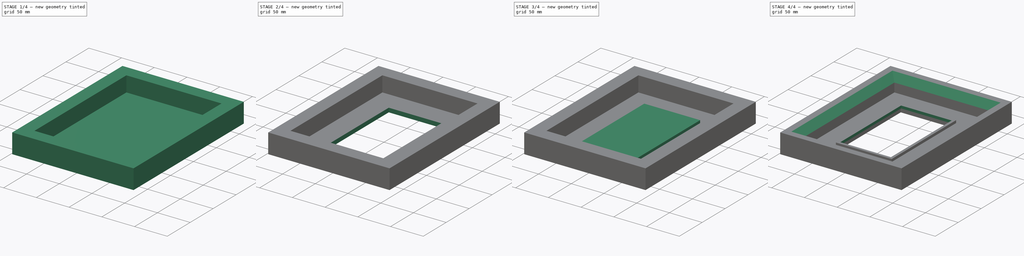
[diagram: build sequence overview — one tinted view per stage of 4, left to right]
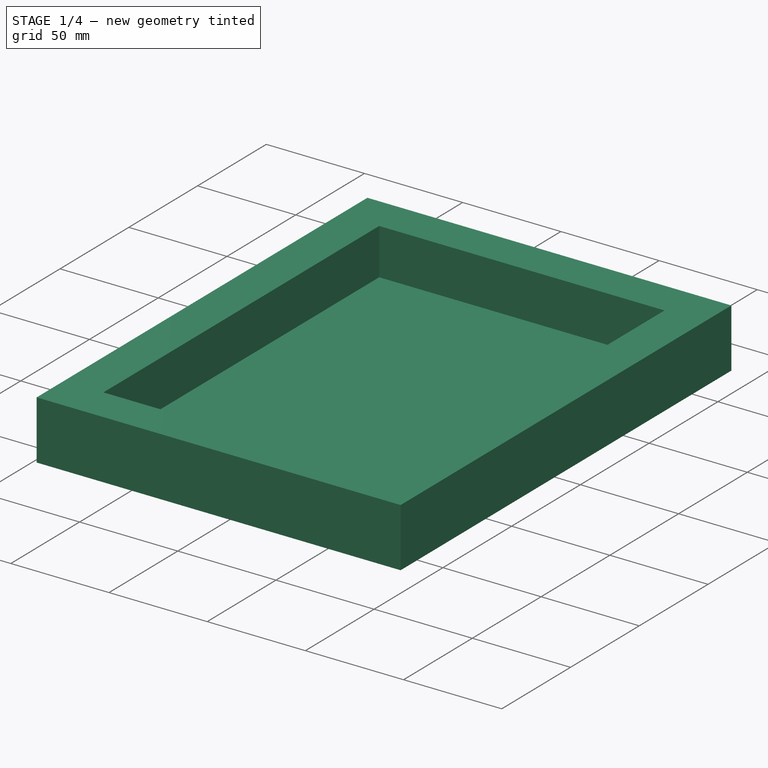
[diagram: stage 1 of 4 — iso view after this stage's code; geometry added in this stage tinted green]
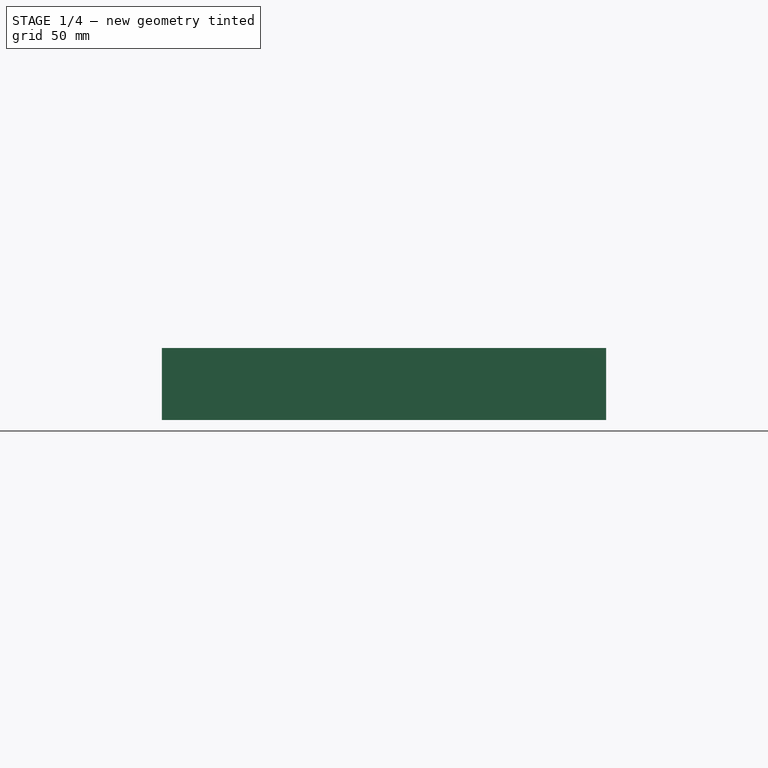
[diagram: stage 1 of 4 — front view after this stage's code; geometry added in this stage tinted green]
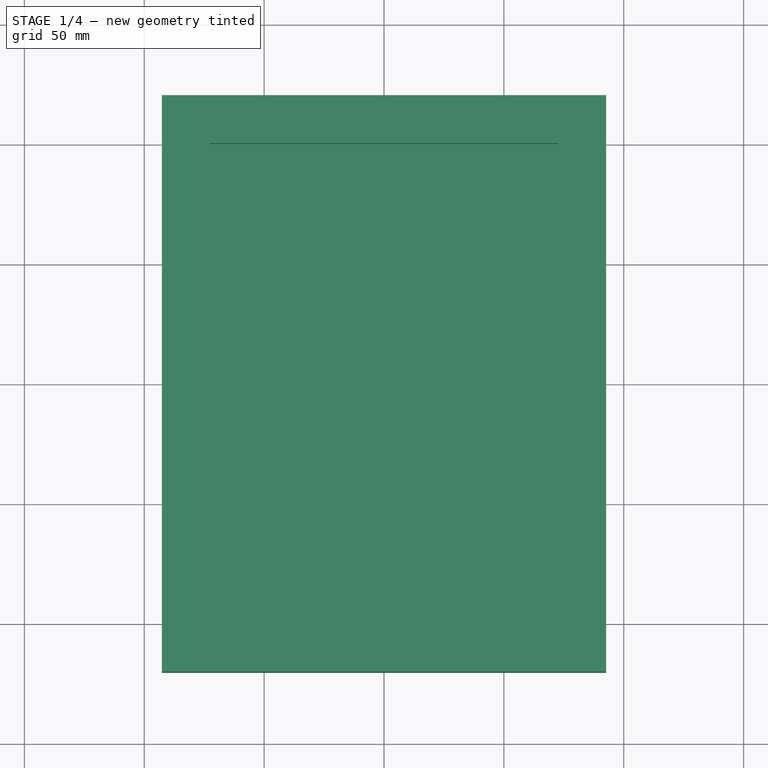
[diagram: stage 1 of 4 — top view after this stage's code; geometry added in this stage tinted green]
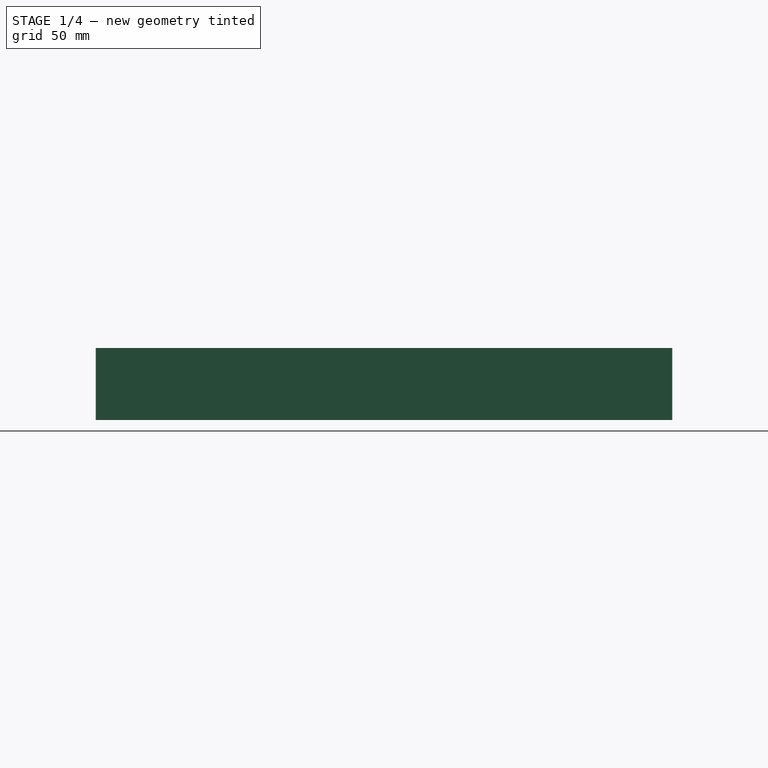
[diagram: stage 1 of 4 — right view after this stage's code; geometry added in this stage tinted green]
FCSTD DOCUMENT  (FreeCAD 0.21R33694 (Git))
Label: Outer_frame
License: All rights reserved
LicenseURL: http://en.wikipedia.org/wiki/All_rights_reserved
objects: Sketcher::SketchObject×9, PartDesign::Pocket×7, PartDesign::Pad×2, Spreadsheet::Sheet×1, PartDesign::Chamfer×1, PartDesign::Body×1, App::Part×1
note: 30 computed .brp shape members not serialized (recipe doc carries the construction recipe); baked Part::Feature solids carry a one-line shape summary decoded from their .brp

FEATURE [Sketcher::SketchObject] Sketch
  FullyConstrained = true
  MapMode = 5
  Support = -> [XY_Plane001]
  expr: Constraints[10] = <<p>>.outer_width
  expr: Constraints[11] = <<p>>.outer_length
  sketch-geometry (5):
    g0: LineSegment StartX=-92.66 StartY=120.25 StartZ=0 EndX=-92.66 EndY=-120.25 EndZ=0
    g1: LineSegment StartX=-92.66 StartY=-120.25 StartZ=0 EndX=92.66 EndY=-120.25 EndZ=0
    g2: LineSegment StartX=92.66 StartY=-120.25 StartZ=0 EndX=92.66 EndY=120.25 EndZ=0
    g3: LineSegment StartX=92.66 StartY=120.25 StartZ=0 EndX=-92.66 EndY=120.25 EndZ=0
    g4: GeomPoint X=0 Y=0 Z=0
  constraints (12):
    c: Coincident(g0,g1)
    c: Coincident(g1,g2)
    c: Coincident(g2,g3)
    c: Coincident(g3,g0)
    c: Horizontal(g1)
    c: Horizontal(g3)
    c: Vertical(g0)
    c: Vertical(g2)
    c: Symmetric(g1,g0,g4)
    c: Coincident(g4,g-1)
    c: DistanceX(g3,g3) = 185.32
    c: DistanceY(g2,g2) = 240.5
FEATURE [PartDesign::Pad] Pad
  Direction = (0,0,1)
  Length = 30
  Length2 = 10
  Profile = -> Sketch
  ReferenceAxis = -> Sketch [N_Axis]
  Type = 0
FEATURE [Spreadsheet::Sheet] Spreadsheet  label="p"
  cells = A1='outer_width; B1(outer_width)==B4 + 75; A2='outer_length; B2(outer_length)==B5 + 75; A4='card_holder_width; B4(card_holder_width)=110.32; A5='card_holder_length; B5(card_holder_length)=165.5; A6='card_holder_thickness; B6(card_holder_thickness)=6.4; A8='big_border_width; A10='card_frame_width_inside; B10(card_frame_width_inside)=80.32; A11='card_frame_height_inside; B11(card_frame_height_inside)=135.5; A12='card_frame_thickness_inside; B12(card_frame_thickness_inside)=6.4
FEATURE [Sketcher::SketchObject] Sketch003
  AttachmentOffset = pos=(0,0,30) rot=(0,0,1;0rad)
  FullyConstrained = true
  MapMode = 5
  Placement = pos=(0,0,30) rot=(0,0,1;0rad)
  Support = -> [XY_Plane001]
  expr: Constraints[10] = <<p>>.card_holder_width + 35
  expr: Constraints[11] = <<p>>.card_holder_length + 35
  sketch-geometry (5):
    g0: LineSegment StartX=-72.66 StartY=100.25 StartZ=0 EndX=-72.66 EndY=-100.25 EndZ=0
    g1: LineSegment StartX=-72.66 StartY=-100.25 StartZ=0 EndX=72.66 EndY=-100.25 EndZ=0
    g2: LineSegment StartX=72.66 StartY=-100.25 StartZ=0 EndX=72.66 EndY=100.25 EndZ=0
    g3: LineSegment StartX=72.66 StartY=100.25 StartZ=0 EndX=-72.66 EndY=100.25 EndZ=0
    g4: GeomPoint X=0 Y=0 Z=0
  constraints (12):
    c: Coincident(g0,g1)
    c: Coincident(g1,g2)
    c: Coincident(g2,g3)
    c: Coincident(g3,g0)
    c: Horizontal(g1)
    c: Horizontal(g3)
    c: Vertical(g0)
    c: Vertical(g2)
    c: Symmetric(g1,g0,g4)
    c: Coincident(g4,g-1)
    c: DistanceX(g3,g3) = 145.32
    c: DistanceY(g2,g2) = 200.5
FEATURE [PartDesign::Pocket] Pocket
  BaseFeature = -> Pad
  Direction = (0,0,-1)
  Length = 23.6
  Length2 = 5
  Profile = -> Sketch003
  ReferenceAxis = -> Sketch003 [N_Axis]
  Type = 0
  expr: Length = 30 - <<p>>.card_holder_thickness
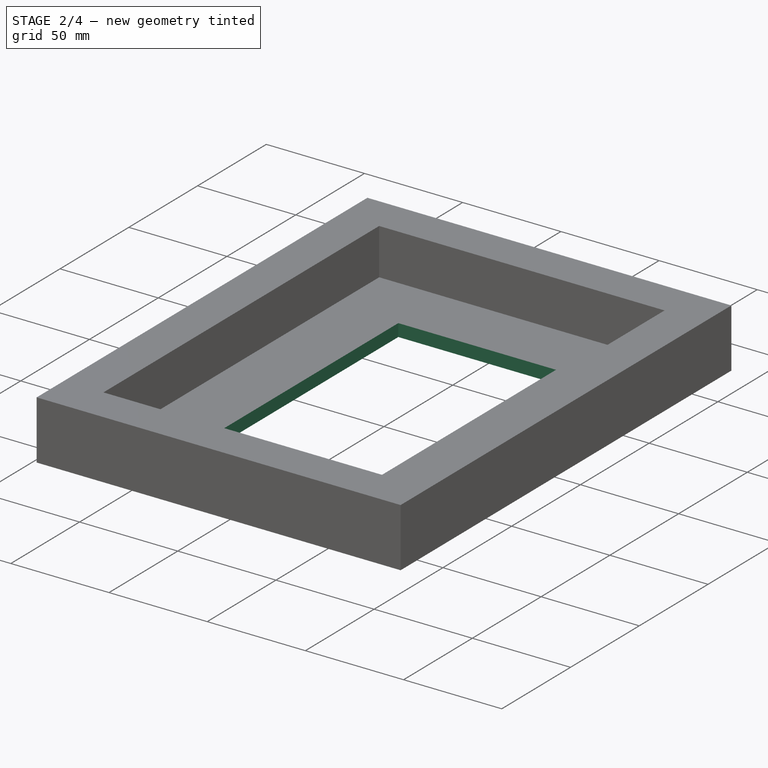
[diagram: stage 2 of 4 — iso view after this stage's code; geometry added in this stage tinted green]
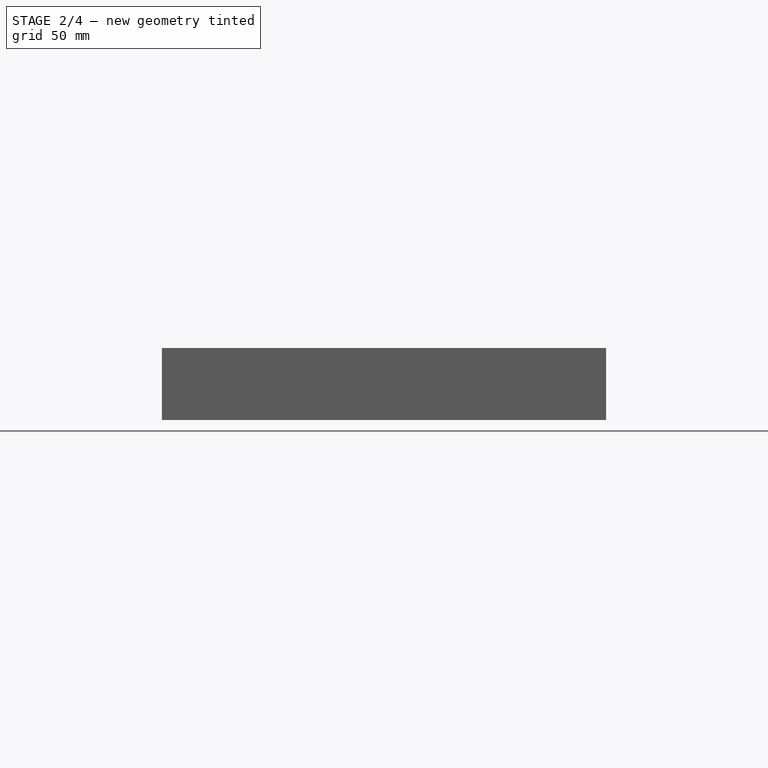
[diagram: stage 2 of 4 — front view after this stage's code; geometry added in this stage tinted green]
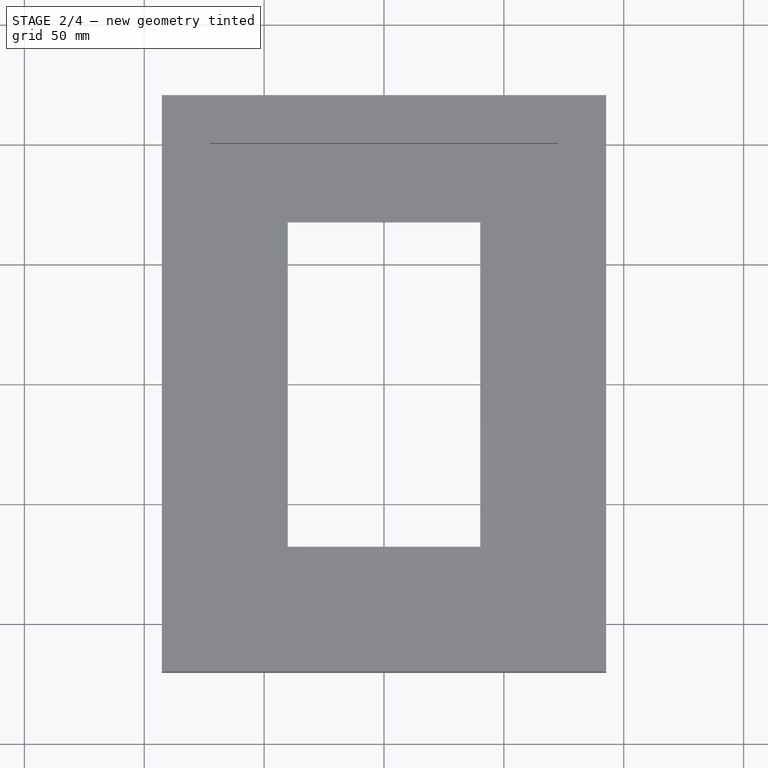
[diagram: stage 2 of 4 — top view after this stage's code; geometry added in this stage tinted green]
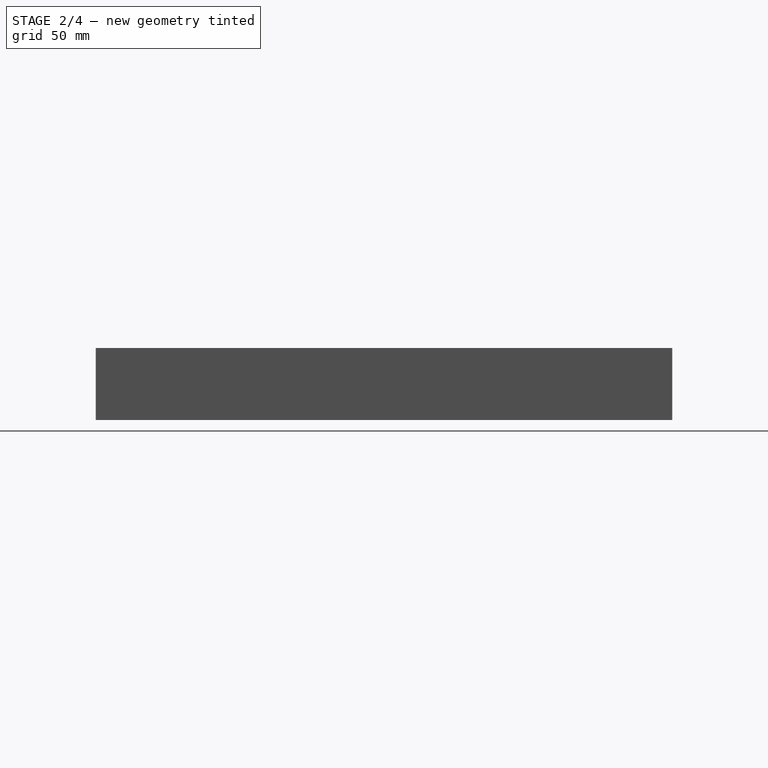
[diagram: stage 2 of 4 — right view after this stage's code; geometry added in this stage tinted green]
FEATURE [Sketcher::SketchObject] Sketch004
  AttachmentOffset = pos=(0,0,6.4) rot=(0,0,1;0rad)
  FullyConstrained = true
  MapMode = 5
  Placement = pos=(0,0,6.4) rot=(0,0,1;0rad)
  Support = -> [XY_Plane001]
  expr: .AttachmentOffset.Base.z = <<p>>.card_holder_thickness
  expr: Constraints[10] = <<p>>.card_frame_width_inside
  expr: Constraints[11] = <<p>>.card_frame_height_inside
  sketch-geometry (5):
    g0: LineSegment StartX=-40.16 StartY=67.75 StartZ=0 EndX=-40.16 EndY=-67.75 EndZ=0
    g1: LineSegment StartX=-40.16 StartY=-67.75 StartZ=0 EndX=40.16 EndY=-67.75 EndZ=0
    g2: LineSegment StartX=40.16 StartY=-67.75 StartZ=0 EndX=40.16 EndY=67.75 EndZ=0
    g3: LineSegment StartX=40.16 StartY=67.75 StartZ=0 EndX=-40.16 EndY=67.75 EndZ=0
    g4: GeomPoint X=0 Y=0 Z=0
  constraints (12):
    c: Coincident(g0,g1)
    c: Coincident(g1,g2)
    c: Coincident(g2,g3)
    c: Coincident(g3,g0)
    c: Horizontal(g1)
    c: Horizontal(g3)
    c: Vertical(g0)
    c: Vertical(g2)
    c: Symmetric(g1,g0,g4)
    c: Coincident(g4,g-1)
    c: DistanceX(g3,g3) = 80.32
    c: DistanceY(g2,g2) = 135.5
FEATURE [PartDesign::Pocket] Pocket001
  BaseFeature = -> Pocket
  Direction = (0,0,-1)
  Length = 6.4
  Length2 = 5
  Profile = -> Sketch004
  ReferenceAxis = -> Sketch004 [N_Axis]
  Type = 0
  expr: Length = <<p>>.card_holder_thickness
FEATURE [Sketcher::SketchObject] Sketch005
  FullyConstrained = true
  MapMode = 5
  Support = -> [XY_Plane001]
  sketch-geometry (4):
    g0: ArcOfCircle CenterX=-82.985 CenterY=0 CenterZ=0 NormalX=0 NormalY=0 NormalZ=1 AngleXU=0 Radius=2.985 StartAngle=3.14159 EndAngle=6.28319
    g1: LineSegment StartX=-80 StartY=-7e-16 StartZ=0 EndX=-80 EndY=18.026 EndZ=0
    g2: LineSegment StartX=-85.97 StartY=18.026 StartZ=0 EndX=-85.97 EndY=0 EndZ=0
    g3: ArcOfCircle CenterX=-82.985 CenterY=22.29 CenterZ=0 NormalX=0 NormalY=0 NormalZ=1 AngleXU=0 Radius=5.205 StartAngle=5.32315 EndAngle=10.3848
  constraints (12):
    c: Tangent(g0,g1) = -1.5708
    c: Tangent(g2,g0) = -1.5708
    c: PointOnObject(g0,g-1)
    c: Vertical(g1)
    c: Diameter(g3) = 10.41
    c: Coincident(g3,g2)
    c: Coincident(g3,g1)
    c: Horizontal(g2,g1)
    c: Vertical(g2)
    c: DistanceX(g0,g-1) = 80
    c: DistanceY(g0,g3) = 22.29
    c: Diameter(g0) = 5.97
FEATURE [PartDesign::Pocket] Pocket002
  BaseFeature = -> Pocket001
  Direction = (0,0,-1)
  Length = 3
  Length2 = 5
  Profile = -> Sketch005
  ReferenceAxis = -> Sketch005 [N_Axis]
  Reversed = true
  Type = 0
FEATURE [Sketcher::SketchObject] Sketch006
  FullyConstrained = true
  MapMode = 5
  Placement = pos=(0,0,0) rot=(1,0,0;1.5708rad)
  Support = -> [XZ_Plane001]
  sketch-geometry (4):
    g0: LineSegment StartX=-90 StartY=5.98 StartZ=0 EndX=-76 EndY=5.98 EndZ=0
    g1: LineSegment StartX=-76 StartY=5.98 StartZ=0 EndX=-76 EndY=2.98 EndZ=0
    g2: LineSegment StartX=-76 StartY=2.98 StartZ=0 EndX=-90 EndY=2.98 EndZ=0
    g3: LineSegment StartX=-90 StartY=2.98 StartZ=0 EndX=-90 EndY=5.98 EndZ=0
  constraints (12):
    c: Coincident(g0,g1)
    c: Coincident(g1,g2)
    c: Coincident(g2,g3)
    c: Coincident(g3,g0)
    c: Horizontal(g0)
    c: Horizontal(g2)
    c: Vertical(g1)
    c: Vertical(g3)
    c: DistanceX(g1,g-1) = 76
    c: DistanceX(g2,g-1) = 90
    c: DistanceY(g3,g3) = 3
    c: DistanceY(g-1,g1) = 2.98
FEATURE [PartDesign::Pocket] Pocket003
  BaseFeature = -> Pocket002
  Direction = (0,1,2e-16)
  Length = 60
  Length2 = 5
  Midplane = true
  Profile = -> Sketch006
  ReferenceAxis = -> Sketch006 [N_Axis]
  Type = 0
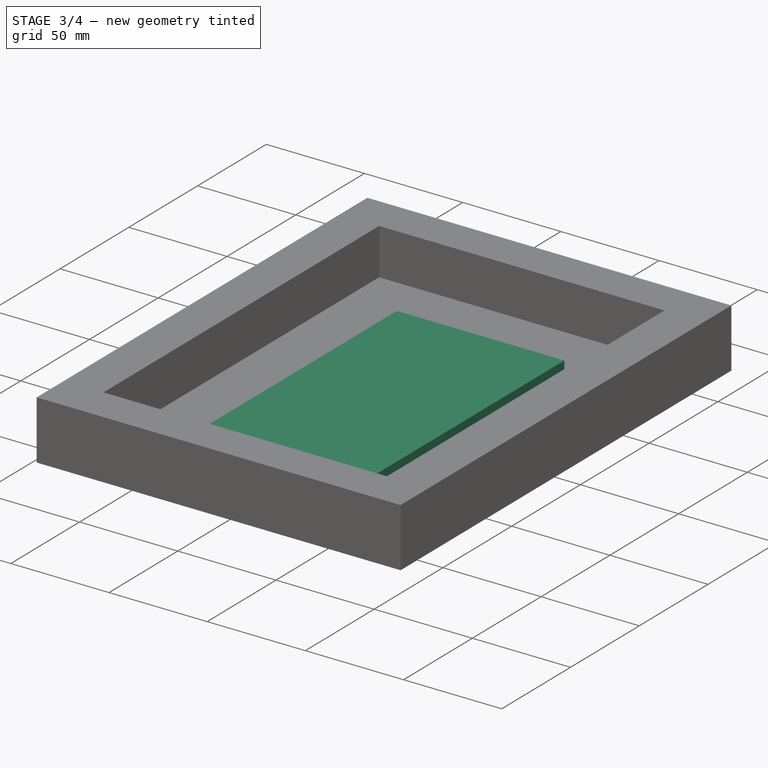
[diagram: stage 3 of 4 — iso view after this stage's code; geometry added in this stage tinted green]
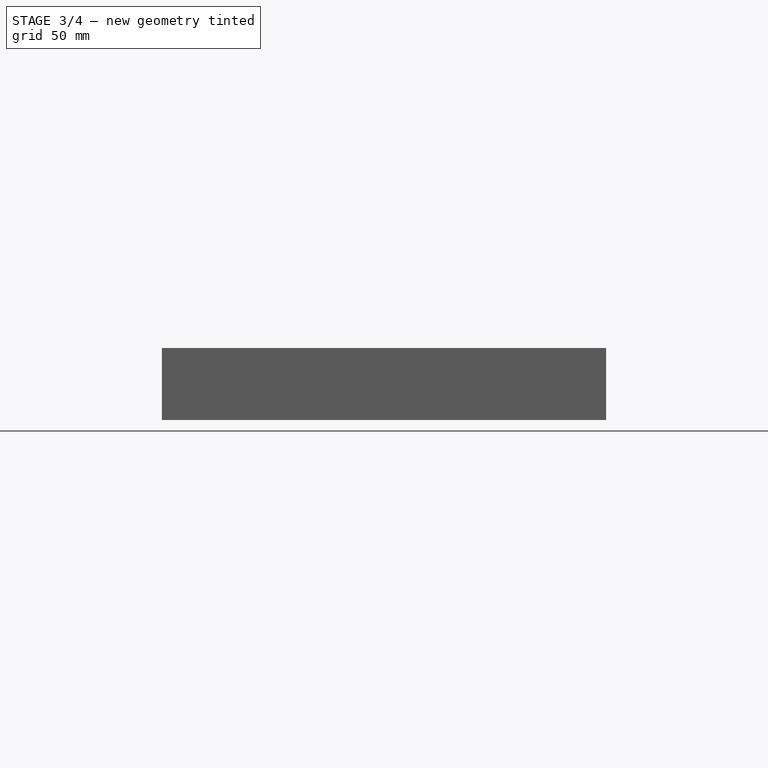
[diagram: stage 3 of 4 — front view after this stage's code; geometry added in this stage tinted green]
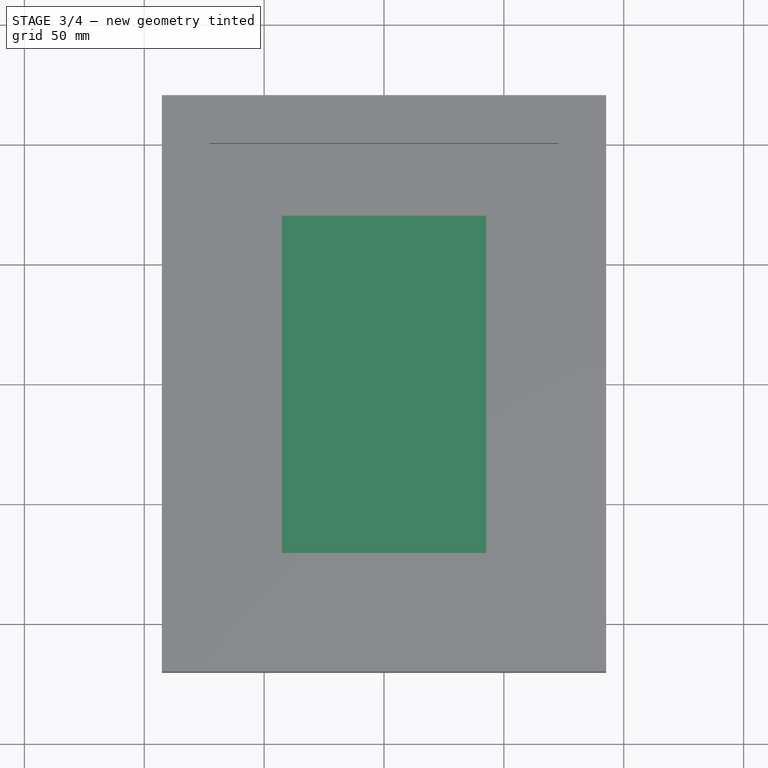
[diagram: stage 3 of 4 — top view after this stage's code; geometry added in this stage tinted green]
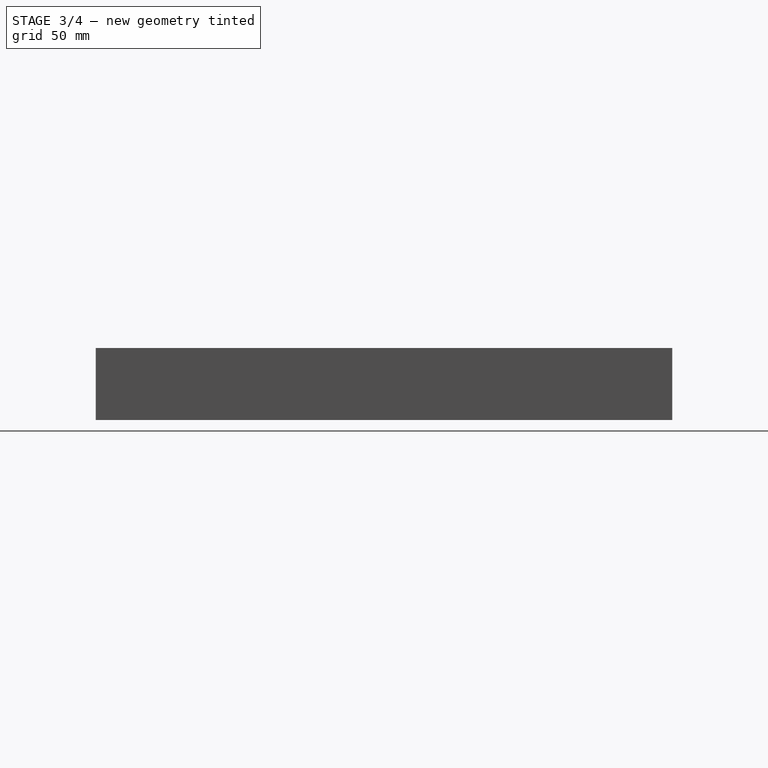
[diagram: stage 3 of 4 — right view after this stage's code; geometry added in this stage tinted green]
FEATURE [Sketcher::SketchObject] Sketch007
  FullyConstrained = true
  MapMode = 5
  Support = -> [XY_Plane001]
  sketch-geometry (4):
    g0: ArcOfCircle CenterX=0 CenterY=108 CenterZ=0 NormalX=0 NormalY=0 NormalZ=1 AngleXU=0 Radius=2.985 StartAngle=1.5708 EndAngle=4.71239
    g1: LineSegment StartX=-5e-16 StartY=105.015 StartZ=0 EndX=18.706 EndY=105.015 EndZ=0
    g2: LineSegment StartX=18.706 StartY=110.985 StartZ=0 EndX=0 EndY=110.985 EndZ=0
    g3: ArcOfCircle CenterX=22.97 CenterY=108 CenterZ=0 NormalX=0 NormalY=0 NormalZ=1 AngleXU=0 Radius=5.205 StartAngle=3.75235 EndAngle=8.81402
  constraints (12):
    c: Tangent(g0,g1) = -1.5708
    c: Tangent(g2,g0) = -1.5708
    c: PointOnObject(g0,g-2)
    c: Horizontal(g2)
    c: Diameter(g0) = 5.97
    c: DistanceY(g-1,g0) = 108
    c: Diameter(g3) = 10.41
    c: Coincident(g3,g2)
    c: Coincident(g3,g1)
    c: Horizontal(g1)
    c: Vertical(g1,g2)
    c: DistanceX(g0,g3) = 22.97
FEATURE [PartDesign::Pocket] Pocket004
  BaseFeature = -> Pocket003
  Direction = (0,0,-1)
  Length = 3
  Length2 = 5
  Midplane = true
  Profile = -> Sketch007
  ReferenceAxis = -> Sketch007 [N_Axis]
  Type = 0
FEATURE [Sketcher::SketchObject] Sketch008
  FullyConstrained = true
  MapMode = 5
  Placement = pos=(0,0,0) rot=(0.57735,0.57735,0.57735;2.0944rad)
  Support = -> [YZ_Plane001]
  sketch-geometry (4):
    g0: LineSegment StartX=102 StartY=3.9227 StartZ=0 EndX=114 EndY=3.9227 EndZ=0
    g1: LineSegment StartX=114 StartY=3.9227 StartZ=0 EndX=114 EndY=1.4983 EndZ=0
    g2: LineSegment StartX=114 StartY=1.4983 StartZ=0 EndX=102 EndY=1.4983 EndZ=0
    g3: LineSegment StartX=102 StartY=1.4983 StartZ=0 EndX=102 EndY=3.9227 EndZ=0
  constraints (12):
    c: Coincident(g0,g1)
    c: Coincident(g1,g2)
    c: Coincident(g2,g3)
    c: Coincident(g3,g0)
    c: Horizontal(g0)
    c: Horizontal(g2)
    c: Vertical(g1)
    c: Vertical(g3)
    c: DistanceX(g-1,g2) = 102
    c: DistanceX(g-1,g1) = 114
    c: DistanceY(g-1,g0) = 3.9227
    c: DistanceY(g-1,g2) = 1.4983
FEATURE [PartDesign::Pocket] Pocket005
  BaseFeature = -> Pocket004
  Direction = (-1,2e-16,-3e-16)
  Length = 60
  Length2 = 5
  Midplane = true
  Profile = -> Sketch008
  ReferenceAxis = -> Sketch008 [N_Axis]
  Type = 0
FEATURE [Sketcher::SketchObject] Sketch009
  AttachmentOffset = pos=(0,0,6.4) rot=(0,0,1;0rad)
  FullyConstrained = true
  MapMode = 5
  Placement = pos=(0,0,6.4) rot=(0,0,1;0rad)
  Support = -> [XY_Plane001]
  expr: .AttachmentOffset.Base.z = <<p>>.card_holder_thickness
  expr: Constraints[10] = <<p>>.card_frame_width_inside + 5
  expr: Constraints[11] = <<p>>.card_frame_height_inside + 5
  sketch-geometry (5):
    g0: LineSegment StartX=-42.66 StartY=70.25 StartZ=0 EndX=-42.66 EndY=-70.25 EndZ=0
    g1: LineSegment StartX=-42.66 StartY=-70.25 StartZ=0 EndX=42.66 EndY=-70.25 EndZ=0
    g2: LineSegment StartX=42.66 StartY=-70.25 StartZ=0 EndX=42.66 EndY=70.25 EndZ=0
    g3: LineSegment StartX=42.66 StartY=70.25 StartZ=0 EndX=-42.66 EndY=70.25 EndZ=0
    g4: GeomPoint X=0 Y=0 Z=0
  constraints (12):
    c: Coincident(g0,g1)
    c: Coincident(g1,g2)
    c: Coincident(g2,g3)
    c: Coincident(g3,g0)
    c: Horizontal(g1)
    c: Horizontal(g3)
    c: Vertical(g0)
    c: Vertical(g2)
    c: Symmetric(g1,g0,g4)
    c: Coincident(g4,g-1)
    c: DistanceX(g3,g3) = 85.32
    c: DistanceY(g2,g2) = 140.5
FEATURE [PartDesign::Pad] Pad001
  BaseFeature = -> Pocket005
  Direction = (0,0,1)
  Length = 4
  Length2 = 10
  Profile = -> Sketch009
  ReferenceAxis = -> Sketch009 [N_Axis]
  Type = 0
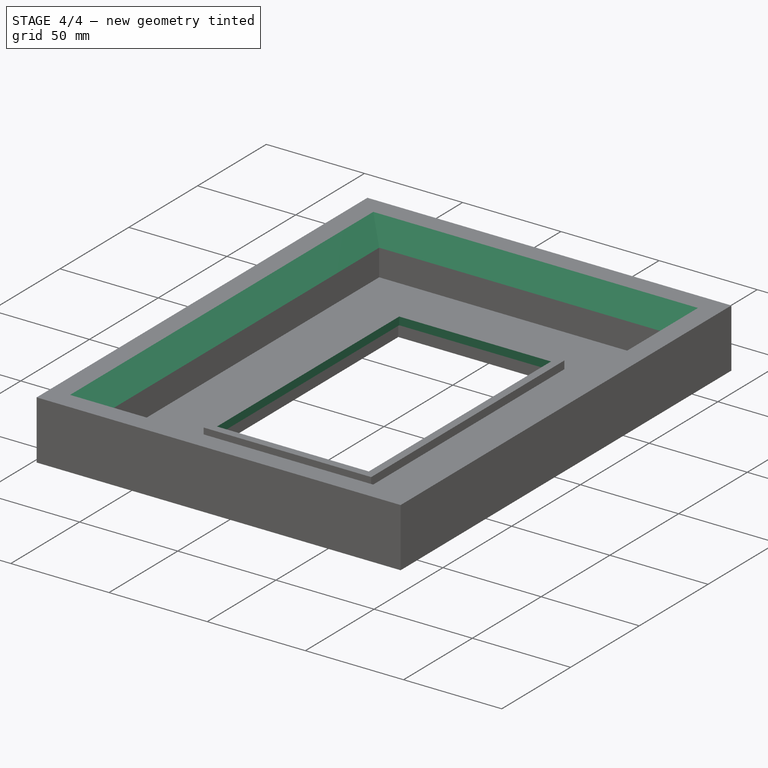
[diagram: stage 4 of 4 — iso view after this stage's code; geometry added in this stage tinted green]
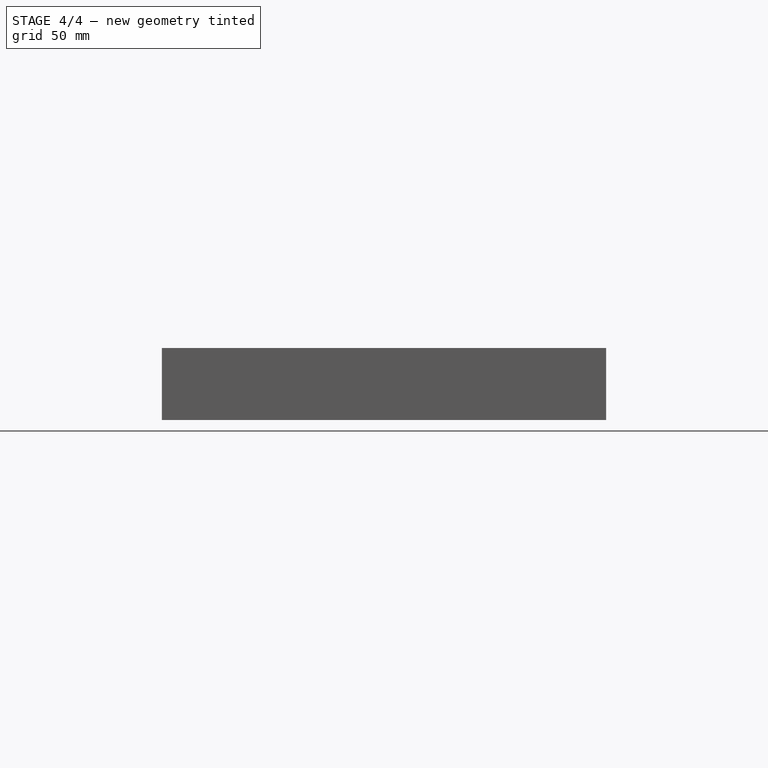
[diagram: stage 4 of 4 — front view after this stage's code; geometry added in this stage tinted green]
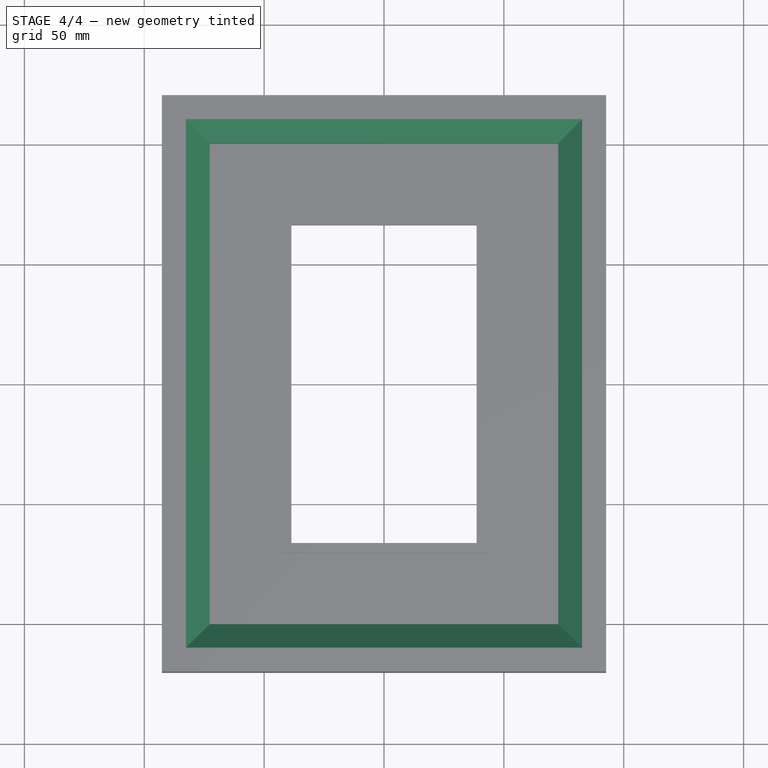
[diagram: stage 4 of 4 — top view after this stage's code; geometry added in this stage tinted green]
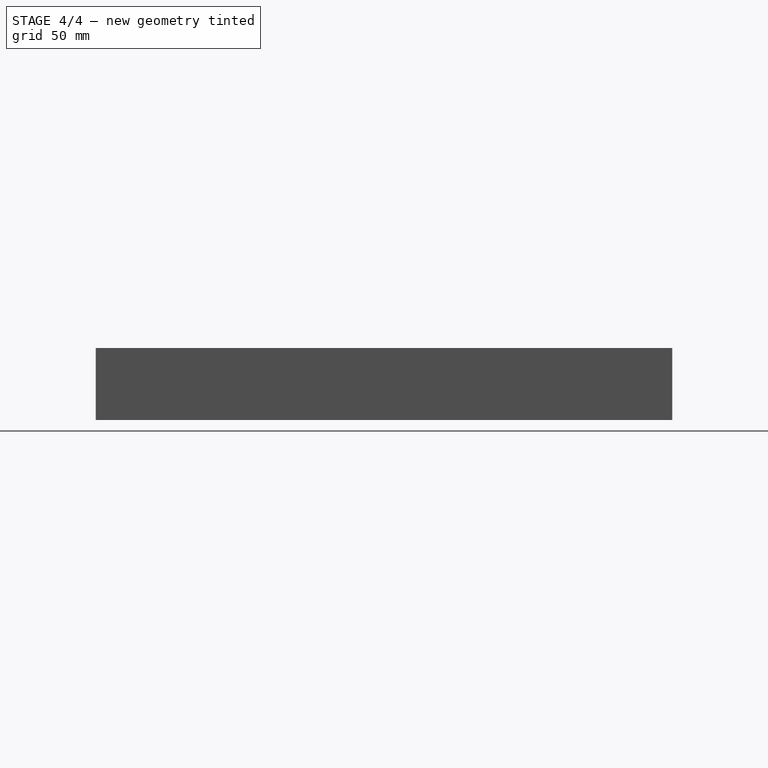
[diagram: stage 4 of 4 — right view after this stage's code; geometry added in this stage tinted green]
FEATURE [Sketcher::SketchObject] Sketch010
  FullyConstrained = true
  MapMode = 5
  Support = -> [XY_Plane001]
  expr: Constraints[10] = <<p>>.card_frame_width_inside - 3
  expr: Constraints[11] = <<p>>.card_frame_height_inside - 3
  sketch-geometry (5):
    g0: LineSegment StartX=-38.66 StartY=66.25 StartZ=0 EndX=-38.66 EndY=-66.25 EndZ=0
    g1: LineSegment StartX=-38.66 StartY=-66.25 StartZ=0 EndX=38.66 EndY=-66.25 EndZ=0
    g2: LineSegment StartX=38.66 StartY=-66.25 StartZ=0 EndX=38.66 EndY=66.25 EndZ=0
    g3: LineSegment StartX=38.66 StartY=66.25 StartZ=0 EndX=-38.66 EndY=66.25 EndZ=0
    g4: GeomPoint X=0 Y=0 Z=0
  constraints (12):
    c: Coincident(g0,g1)
    c: Coincident(g1,g2)
    c: Coincident(g2,g3)
    c: Coincident(g3,g0)
    c: Horizontal(g1)
    c: Horizontal(g3)
    c: Vertical(g0)
    c: Vertical(g2)
    c: Symmetric(g1,g0,g4)
    c: Coincident(g4,g-1)
    c: DistanceX(g3,g3) = 77.32
    c: DistanceY(g2,g2) = 132.5
FEATURE [PartDesign::Pocket] Pocket006
  BaseFeature = -> Pad001
  Direction = (0,0,-1)
  Length = 5
  Length2 = 5
  Midplane = true
  Profile = -> Sketch010
  ReferenceAxis = -> Sketch010 [N_Axis]
  Type = 1
FEATURE [PartDesign::Chamfer] Chamfer
  Angle = 45
  Base = -> Pocket006 [Edge25,Edge28,Edge27,Edge26]
  BaseFeature = -> Pocket006
  ChamferType = 0
  FlipDirection = false
  Size = 10
  Size2 = 1
  SupportTransform = false
  UseAllEdges = false
FEATURE [PartDesign::Body] Body
  Group = -> [Sketch,Pad,Sketch003,Pocket,Sketch004,Pocket001,Sketch005,Pocket002,Sketch006,Pocket003,Sketch007,Pocket004,Sketch008,Pocket005,Sketch009,Pad001,Sketch010,Pocket006,Chamfer]
  Origin = -> Origin001
  Tip = -> Chamfer
FEATURE [App::Part] Part
  Group = -> [Body]
  Origin = -> Origin
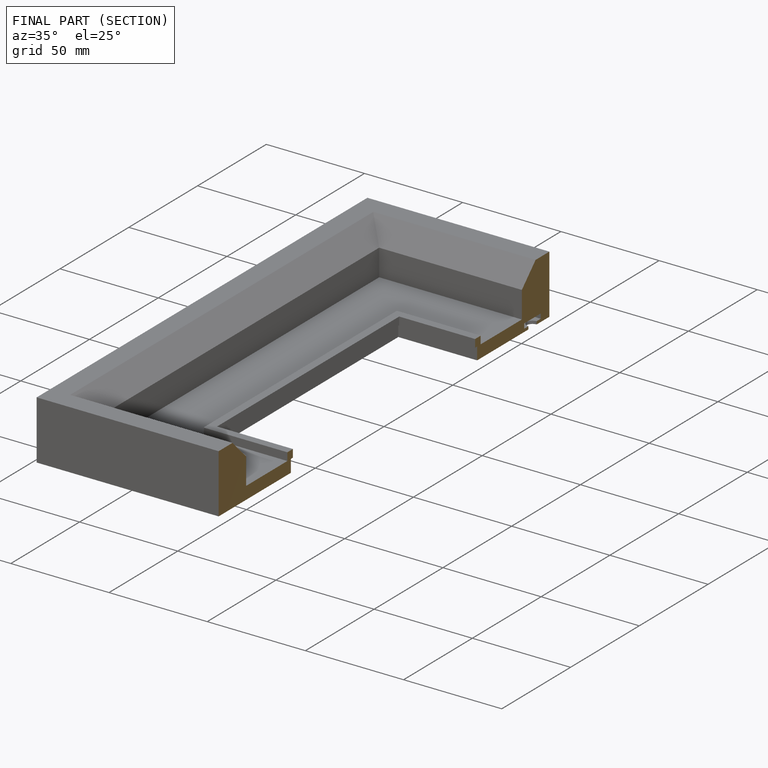
[diagram: finished part — half-section view (interior)]
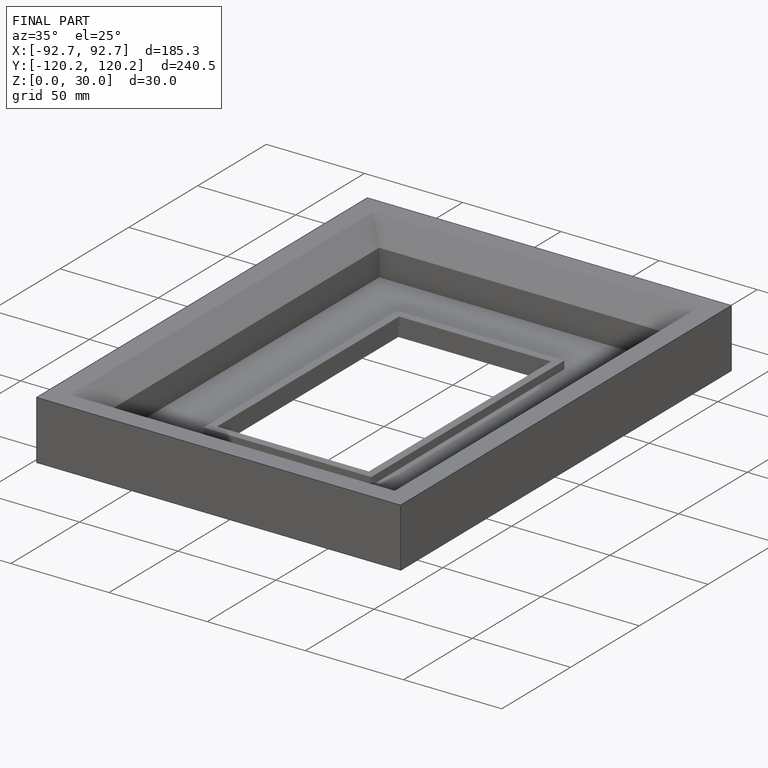
[diagram: finished part — iso view with bounding-box wireframe]
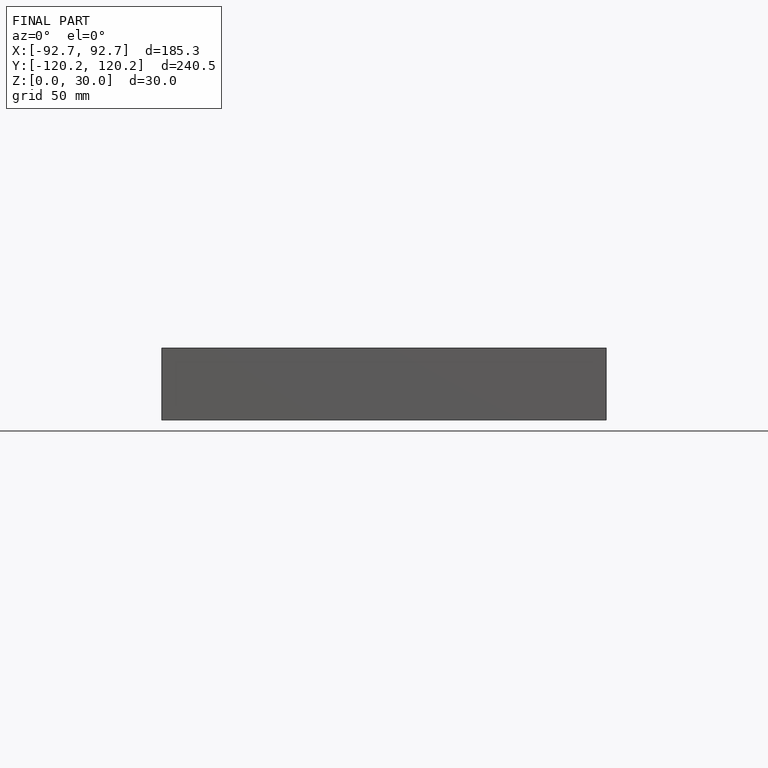
[diagram: finished part — front view with bounding-box wireframe]
